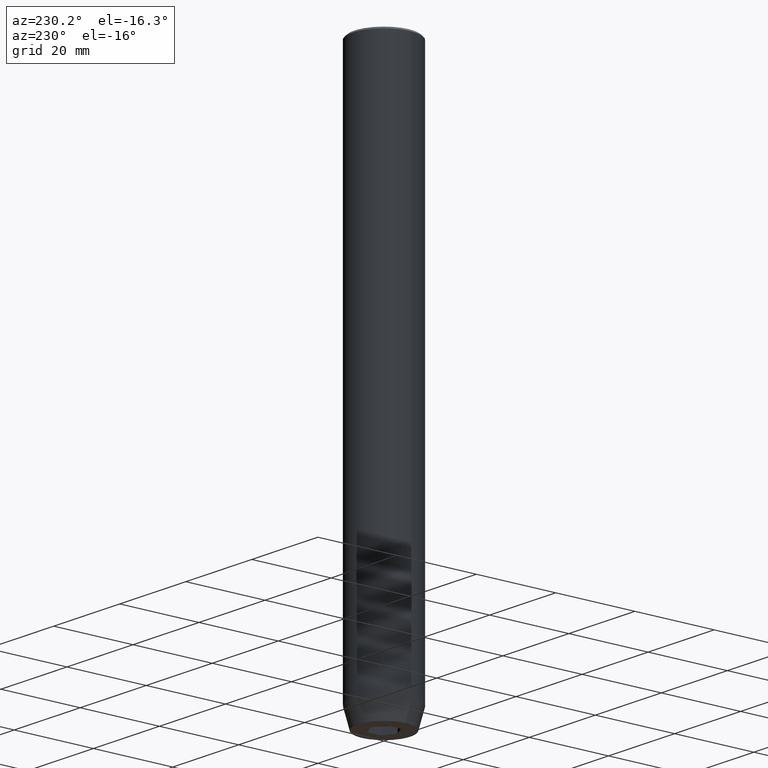
[diagram: clean part render]
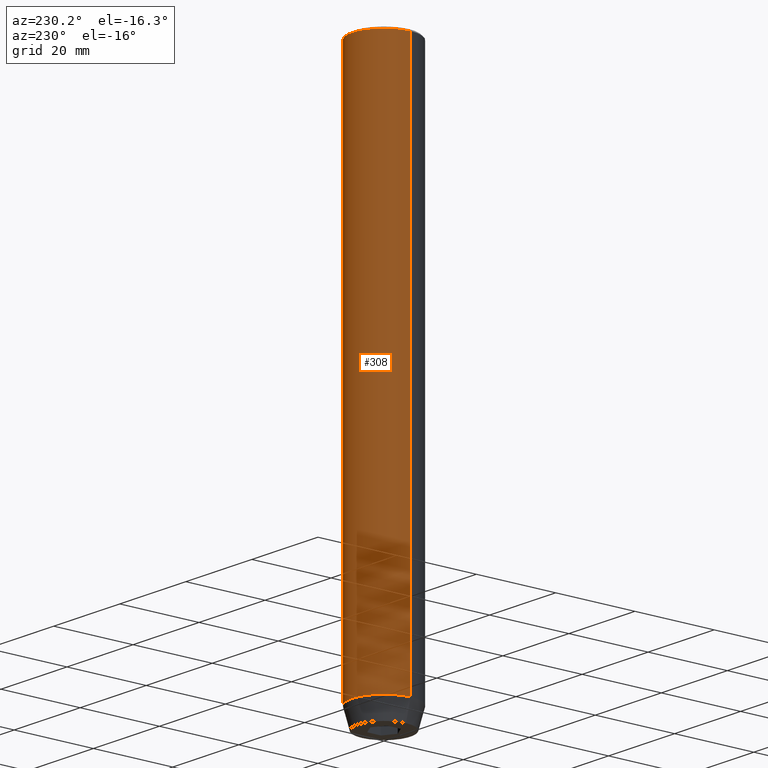
[diagram: same view with one face highlighted and labeled with its STEP entity id]
A machine part, auxiliary view. The second image highlights one B-rep face of the part: STEP entity #308.
In plain terms, the highlighted cylindrical surface (partial cylindrical patch) has radius 8 mm, axis along (-0, -0, 1).
Its self-contained STEP definition (entity closure, byte-faithful):
#35 = CARTESIAN_POINT ( 'NONE',  ( 8.000000000000000000, 0.000000000000000000, -0.5000000000000073275 ) ) ;
#51 = EDGE_CURVE ( 'NONE', #122, #465, #307, .T. ) ;
#64 = ORIENTED_EDGE ( 'NONE', *, *, #193, .T. ) ;
#66 = EDGE_CURVE ( 'NONE', #529, #481, #235, .T. ) ;
#70 = AXIS2_PLACEMENT_3D ( 'NONE', #123, #121, #530 ) ;
#83 = ORIENTED_EDGE ( 'NONE', *, *, #66, .T. ) ;
#85 = LINE ( 'NONE', #130, #484 ) ;
#108 = EDGE_CURVE ( 'NONE', #122, #481, #85, .T. ) ;
#121 = DIRECTION ( 'NONE',  ( -0.000000000000000000, -0.000000000000000000, 1.000000000000000000 ) ) ;
#122 = VERTEX_POINT ( 'NONE', #182 ) ;
#123 = CARTESIAN_POINT ( 'NONE',  ( 0.000000000000000000, 0.000000000000000000, 0.000000000000000000 ) ) ;
#130 = CARTESIAN_POINT ( 'NONE',  ( 8.000000000000000000, 0.000000000000000000, 0.000000000000000000 ) ) ;
#182 = CARTESIAN_POINT ( 'NONE',  ( 8.000000000000000000, 0.000000000000000000, -135.0000000000000000 ) ) ;
#193 = EDGE_CURVE ( 'NONE', #465, #529, #425, .T. ) ;
#220 = DIRECTION ( 'NONE',  ( 0.000000000000000000, 0.000000000000000000, -1.000000000000000000 ) ) ;
#224 = DIRECTION ( 'NONE',  ( -0.000000000000000000, -0.000000000000000000, 1.000000000000000000 ) ) ;
#235 = CIRCLE ( 'NONE', #280, 8.000000000000000000 ) ;
#280 = AXIS2_PLACEMENT_3D ( 'NONE', #392, #220, #448 ) ;
#303 = DIRECTION ( 'NONE',  ( -0.000000000000000000, -0.000000000000000000, 1.000000000000000000 ) ) ;
#307 = CIRCLE ( 'NONE', #494, 8.000000000000000000 ) ;
#308 = ADVANCED_FACE ( 'NONE', ( #526 ), #520, .T. ) ;
#344 = DIRECTION ( 'NONE',  ( -0.000000000000000000, -0.000000000000000000, 1.000000000000000000 ) ) ;
#355 = DIRECTION ( 'NONE',  ( 1.000000000000000000, 0.000000000000000000, 0.000000000000000000 ) ) ;
#375 = CARTESIAN_POINT ( 'NONE',  ( -8.000000000000000000, 9.797174393178825657E-16, -0.5000000000000073275 ) ) ;
#385 = ORIENTED_EDGE ( 'NONE', *, *, #51, .T. ) ;
#392 = CARTESIAN_POINT ( 'NONE',  ( 0.000000000000000000, 0.000000000000000000, -0.5000000000000073275 ) ) ;
#425 = LINE ( 'NONE', #487, #458 ) ;
#445 = CARTESIAN_POINT ( 'NONE',  ( 0.000000000000000000, 0.000000000000000000, -135.0000000000000000 ) ) ;
#448 = DIRECTION ( 'NONE',  ( 1.000000000000000000, 0.000000000000000000, 0.000000000000000000 ) ) ;
#454 = EDGE_LOOP ( 'NONE', ( #385, #64, #83, #558 ) ) ;
#458 = VECTOR ( 'NONE', #344, 1000.000000000000000 ) ;
#465 = VERTEX_POINT ( 'NONE', #468 ) ;
#468 = CARTESIAN_POINT ( 'NONE',  ( -8.000000000000000000, 9.797174393178825657E-16, -135.0000000000000000 ) ) ;
#481 = VERTEX_POINT ( 'NONE', #35 ) ;
#484 = VECTOR ( 'NONE', #224, 1000.000000000000000 ) ;
#487 = CARTESIAN_POINT ( 'NONE',  ( -8.000000000000000000, 9.797174393178825657E-16, 0.000000000000000000 ) ) ;
#494 = AXIS2_PLACEMENT_3D ( 'NONE', #445, #303, #355 ) ;
#520 = CYLINDRICAL_SURFACE ( 'NONE', #70, 8.000000000000000000 ) ;
#526 = FACE_OUTER_BOUND ( 'NONE', #454, .T. ) ;
#529 = VERTEX_POINT ( 'NONE', #375 ) ;
#530 = DIRECTION ( 'NONE',  ( 1.000000000000000000, 0.000000000000000000, 0.000000000000000000 ) ) ;
#558 = ORIENTED_EDGE ( 'NONE', *, *, #108, .F. ) ;